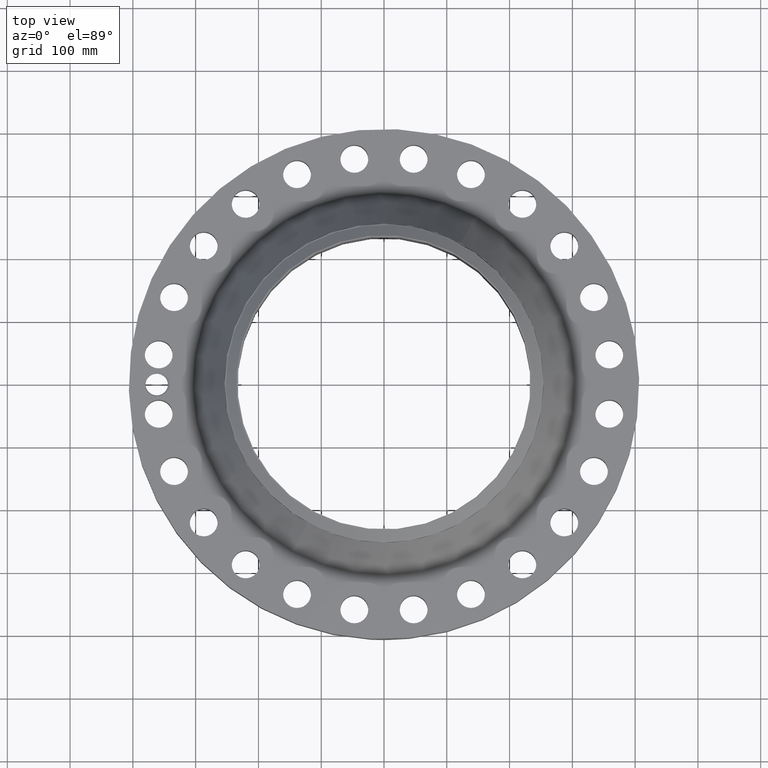
[diagram: clean part render]
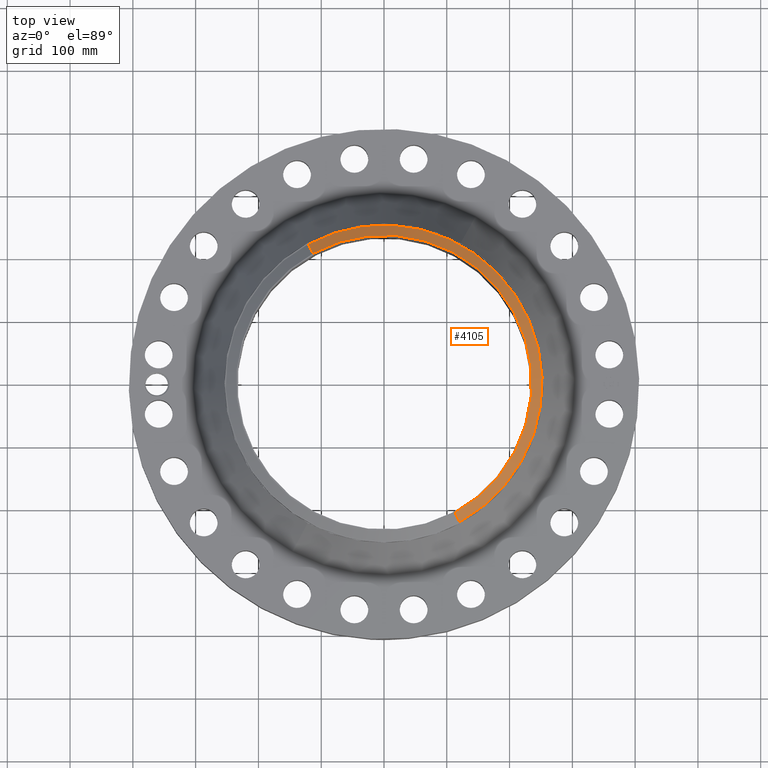
[diagram: same view with one face highlighted and labeled with its STEP entity id]
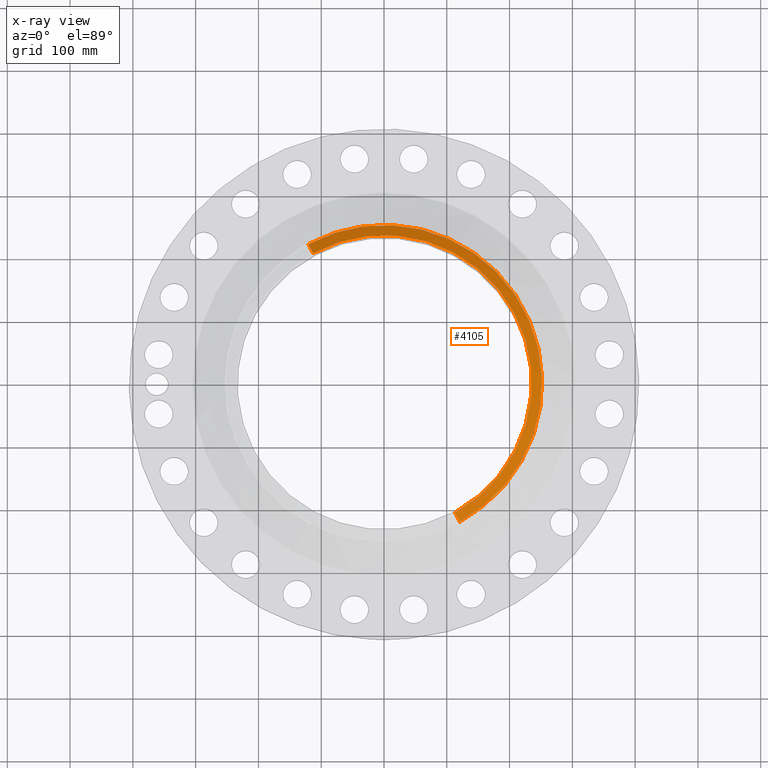
[diagram: x-ray of the same camera — body ghosted, the highlighted face saturated]
A machine part, top view. The second image highlights one B-rep face of the part: STEP entity #4105.
The next image is the same camera in x-ray: the body ghosted, the highlighted face saturated — about 0% of this face is hidden behind the body in this view.
In plain terms, the highlighted conical surface has half-angle 52.5 deg.
Its self-contained STEP definition (entity closure, byte-faithful):
#3246=AXIS2_PLACEMENT_3D('Circle Axis2P3D',#3244,#3245,$) ;
#4066=AXIS2_PLACEMENT_3D('Cone Axis2P3D',#4063,#4064,#4065) ;
#4096=AXIS2_PLACEMENT_3D('Circle Axis2P3D',#4094,#4095,$) ;
#3244=CARTESIAN_POINT('Axis2P3D Location',(0.,0.,7.75000000003)) ;
#3248=CARTESIAN_POINT('Vertex',(4.44271189112,-8.13232956781,7.75000000003)) ;
#3250=CARTESIAN_POINT('Vertex',(-4.44271189112,8.13232956781,7.75000000003)) ;
#4063=CARTESIAN_POINT('Axis2P3D Location',(0.,0.,7.75000000003)) ;
#4068=CARTESIAN_POINT('Line Origine',(-4.59765319367,8.41594771971,7.5020143726)) ;
#4072=CARTESIAN_POINT('Vertex',(-4.75259449622,8.69956587161,7.25402874516)) ;
#4079=CARTESIAN_POINT('Vertex',(4.75259449622,-8.69956587161,7.25402874516)) ;
#4082=CARTESIAN_POINT('Line Origine',(4.59765319367,-8.41594771971,7.5020143726)) ;
#4094=CARTESIAN_POINT('Axis2P3D Location',(0.,0.,7.25402874516)) ;
#3245=DIRECTION('Axis2P3D Direction',(0.,0.,-0.0393700787402)) ;
#4064=DIRECTION('Axis2P3D Direction',(-0.,-0.,-0.0393700787402)) ;
#4065=DIRECTION('Axis2P3D XDirection',(-0.0188750212049,0.0345504945626,0.)) ;
#4069=DIRECTION('Vector Direction',(-0.014974561121,0.02741075027,-0.023966985394)) ;
#4083=DIRECTION('Vector Direction',(0.014974561121,-0.02741075027,-0.023966985394)) ;
#4095=DIRECTION('Axis2P3D Direction',(0.,0.,-0.0393700787402)) ;
#4070=VECTOR('Line Direction',#4069,0.0393700787402) ;
#4084=VECTOR('Line Direction',#4083,0.0393700787402) ;
#4100=ORIENTED_EDGE('',*,*,#3252,.F.) ;
#4101=ORIENTED_EDGE('',*,*,#4086,.T.) ;
#4102=ORIENTED_EDGE('',*,*,#4098,.T.) ;
#4103=ORIENTED_EDGE('',*,*,#4074,.F.) ;
#4105=ADVANCED_FACE('PartBody',(#4104),#4067,.T.) ;
#3247=CIRCLE('generated circle',#3246,9.26674015752) ;
#4097=CIRCLE('generated circle',#4096,9.91310248106) ;
#4067=CONICAL_SURFACE('Cone',#4066,9.26674015752,0.916297857297) ;
#3252=EDGE_CURVE('',#3249,#3251,#3247,.F.) ;
#4074=EDGE_CURVE('',#3251,#4073,#4071,.T.) ;
#4086=EDGE_CURVE('',#3249,#4080,#4085,.T.) ;
#4098=EDGE_CURVE('',#4080,#4073,#4097,.F.) ;
#4099=EDGE_LOOP('',(#4100,#4101,#4102,#4103)) ;
#4104=FACE_OUTER_BOUND('',#4099,.T.) ;
#4071=LINE('Line',#4068,#4070) ;
#4085=LINE('Line',#4082,#4084) ;
#3249=VERTEX_POINT('',#3248) ;
#3251=VERTEX_POINT('',#3250) ;
#4073=VERTEX_POINT('',#4072) ;
#4080=VERTEX_POINT('',#4079) ;